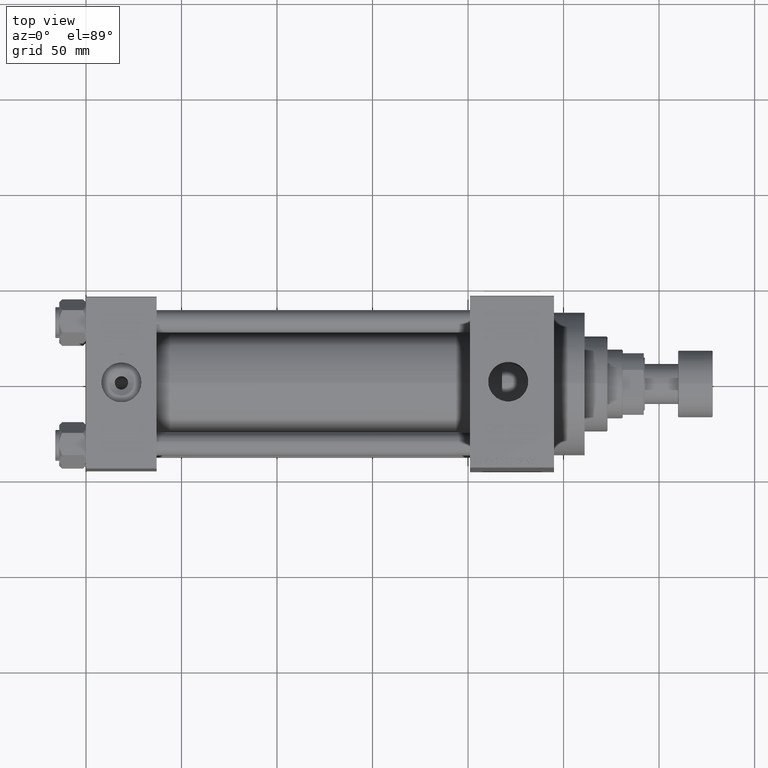
[diagram: clean part render]
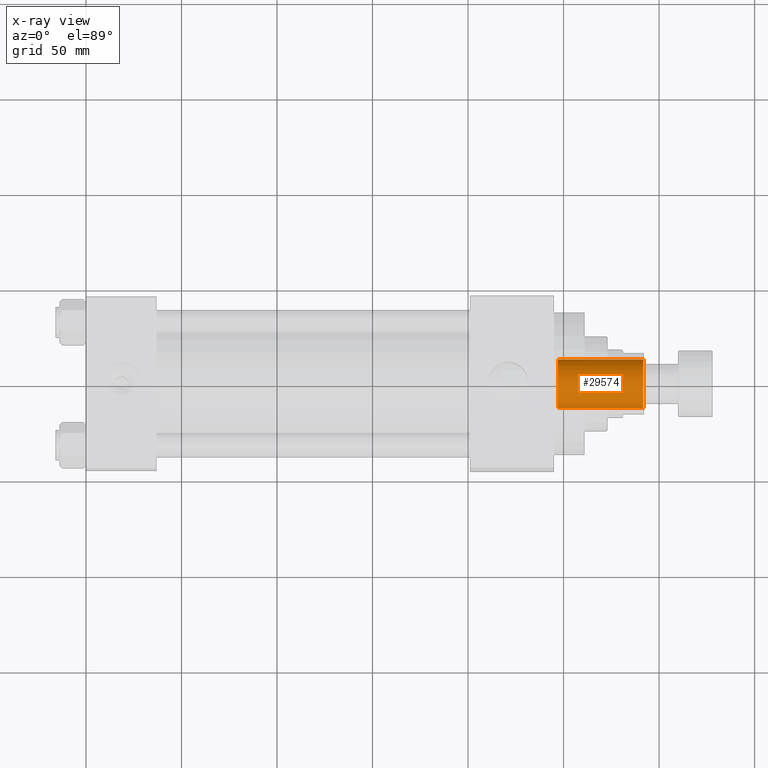
[diagram: x-ray — body ghosted, one internal face saturated and labeled with its STEP entity id]
A machine part, top view, then the same camera in x-ray: the body is ghosted and one INTERNAL B-rep face — a face not visible from any outside direction — is saturated and labeled: STEP entity #29574.
In plain terms, the highlighted cylindrical surface (edge-blend (fillet) strip) has radius 12.75 mm, axis along (1, 0, 0).
Its self-contained STEP definition (entity closure, byte-faithful):
#476 = CARTESIAN_POINT ( 'NONE',  ( -12.74999999999999112, 1.561424668912874125E-15, 254.6999999999999886 ) ) ;
#1902 = ORIENTED_EDGE ( 'NONE', *, *, #24726, .F. ) ;
#2221 = EDGE_CURVE ( 'NONE', #4358, #31064, #10669, .T. ) ;
#2448 = CARTESIAN_POINT ( 'NONE',  ( 12.74999999999999112, 0.000000000000000000, 254.6999999999999886 ) ) ;
#4358 = VERTEX_POINT ( 'NONE', #476 ) ;
#7305 = VERTEX_POINT ( 'NONE', #8975 ) ;
#7491 = DIRECTION ( 'NONE',  ( -0.000000000000000000, -0.000000000000000000, 1.000000000000000000 ) ) ;
#8975 = CARTESIAN_POINT ( 'NONE',  ( 12.74999999999998934, 0.000000000000000000, 210.0000000000000284 ) ) ;
#9702 = EDGE_CURVE ( 'NONE', #45748, #7305, #24054, .T. ) ;
#10277 = FACE_OUTER_BOUND ( 'NONE', #41705, .T. ) ;
#10669 = CIRCLE ( 'NONE', #34660, 12.74999999999999112 ) ;
#10763 = CARTESIAN_POINT ( 'NONE',  ( 0.000000000000000000, 0.000000000000000000, 255.0000000000000000 ) ) ;
#11148 = CARTESIAN_POINT ( 'NONE',  ( -12.74999999999999112, 1.561424668912874125E-15, 255.0000000000000000 ) ) ;
#12751 = DIRECTION ( 'NONE',  ( -0.000000000000000000, -0.000000000000000000, 1.000000000000000000 ) ) ;
#14039 = VECTOR ( 'NONE', #42750, 1000.000000000000000 ) ;
#16851 = ORIENTED_EDGE ( 'NONE', *, *, #45327, .T. ) ;
#20363 = CARTESIAN_POINT ( 'NONE',  ( 0.000000000000000000, 0.000000000000000000, 254.6999999999999886 ) ) ;
#23746 = DIRECTION ( 'NONE',  ( 1.000000000000000000, 0.000000000000000000, 0.000000000000000000 ) ) ;
#24054 = CIRCLE ( 'NONE', #30244, 12.74999999999998934 ) ;
#24726 = EDGE_CURVE ( 'NONE', #7305, #31064, #25067, .T. ) ;
#25067 = LINE ( 'NONE', #39845, #14039 ) ;
#27516 = DIRECTION ( 'NONE',  ( 1.000000000000000000, 0.000000000000000000, 0.000000000000000000 ) ) ;
#29170 = CYLINDRICAL_SURFACE ( 'NONE', #43576, 12.74999999999999112 ) ;
#29574 = ADVANCED_FACE ( 'NONE', ( #10277 ), #29170, .F. ) ;
#30244 = AXIS2_PLACEMENT_3D ( 'NONE', #31146, #12751, #27516 ) ;
#31064 = VERTEX_POINT ( 'NONE', #2448 ) ;
#31146 = CARTESIAN_POINT ( 'NONE',  ( 0.000000000000000000, 0.000000000000000000, 210.0000000000000284 ) ) ;
#32779 = VECTOR ( 'NONE', #7491, 1000.000000000000000 ) ;
#33033 = DIRECTION ( 'NONE',  ( -0.000000000000000000, -0.000000000000000000, 1.000000000000000000 ) ) ;
#33397 = LINE ( 'NONE', #11148, #32779 ) ;
#34660 = AXIS2_PLACEMENT_3D ( 'NONE', #20363, #35141, #23746 ) ;
#35141 = DIRECTION ( 'NONE',  ( 0.000000000000000000, 0.000000000000000000, 1.000000000000000000 ) ) ;
#39845 = CARTESIAN_POINT ( 'NONE',  ( 12.74999999999999112, 0.000000000000000000, 255.0000000000000000 ) ) ;
#41705 = EDGE_LOOP ( 'NONE', ( #42386, #16851, #46766, #1902 ) ) ;
#42386 = ORIENTED_EDGE ( 'NONE', *, *, #9702, .F. ) ;
#42750 = DIRECTION ( 'NONE',  ( -0.000000000000000000, -0.000000000000000000, 1.000000000000000000 ) ) ;
#43576 = AXIS2_PLACEMENT_3D ( 'NONE', #10763, #33033, #47788 ) ;
#45327 = EDGE_CURVE ( 'NONE', #45748, #4358, #33397, .T. ) ;
#45351 = CARTESIAN_POINT ( 'NONE',  ( -12.74999999999998934, 1.561424668912873928E-15, 210.0000000000000284 ) ) ;
#45748 = VERTEX_POINT ( 'NONE', #45351 ) ;
#46766 = ORIENTED_EDGE ( 'NONE', *, *, #2221, .T. ) ;
#47788 = DIRECTION ( 'NONE',  ( 1.000000000000000000, 0.000000000000000000, 0.000000000000000000 ) ) ;